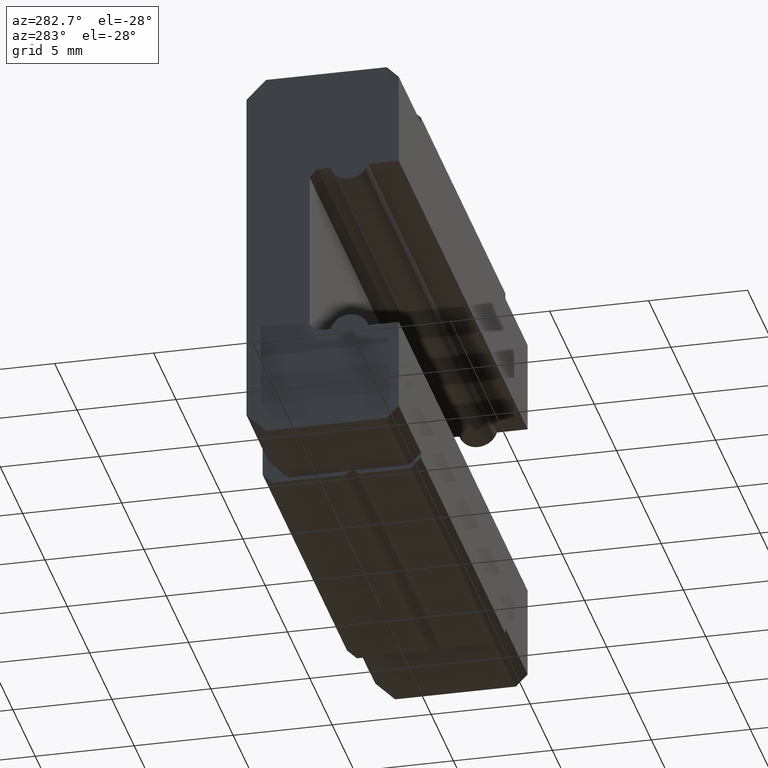
[diagram: clean part render]
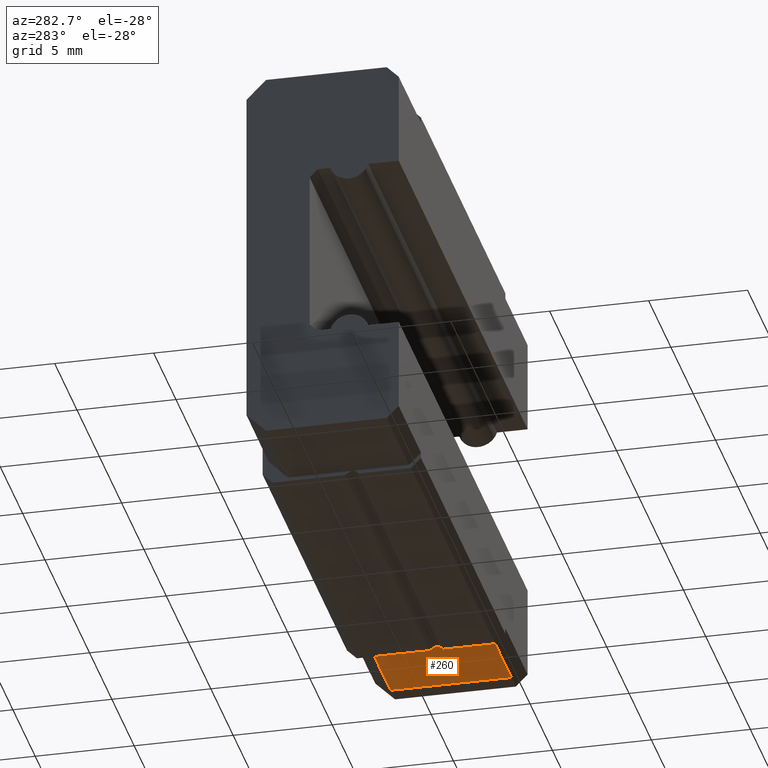
[diagram: same view with one face highlighted and labeled with its STEP entity id]
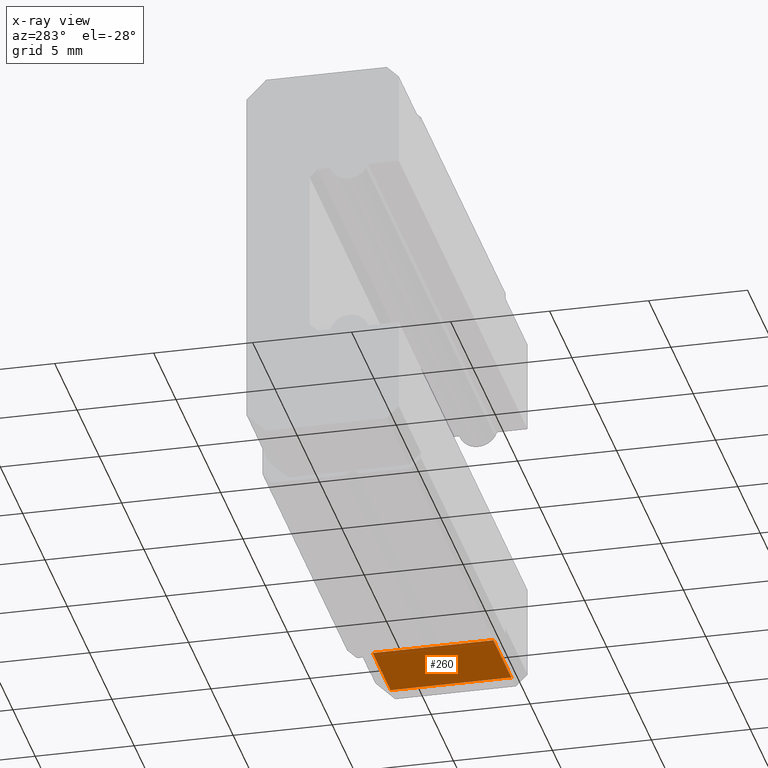
[diagram: x-ray of the same camera — body ghosted, the highlighted face saturated]
A machine part, auxiliary view. The second image highlights one B-rep face of the part: STEP entity #260.
The next image is the same camera in x-ray: the body ghosted, the highlighted face saturated — about 0% of this face is hidden behind the body in this view.
In plain terms, the highlighted planar face has unit normal (0, 0, -1).
Its self-contained STEP definition (entity closure, byte-faithful):
#243 = ORIENTED_EDGE ( 'NONE', *, *, #255, .T. ) ;
#244 = ORIENTED_EDGE ( 'NONE', *, *, #886, .T. ) ;
#255 = EDGE_CURVE ( 'NONE', #256, #880, #1364, .T. ) ;
#256 = VERTEX_POINT ( 'NONE', #1360 ) ;
#260 = ADVANCED_FACE ( 'NONE', ( #1355 ), #1354, .T. ) ;
#261 = EDGE_LOOP ( 'NONE', ( #262, #263, #320, #243, #244 ) ) ;
#262 = ORIENTED_EDGE ( 'NONE', *, *, #277, .F. ) ;
#263 = ORIENTED_EDGE ( 'NONE', *, *, #264, .F. ) ;
#264 = EDGE_CURVE ( 'NONE', #319, #278, #1412, .T. ) ;
#277 = EDGE_CURVE ( 'NONE', #278, #889, #1385, .T. ) ;
#278 = VERTEX_POINT ( 'NONE', #1448 ) ;
#319 = VERTEX_POINT ( 'NONE', #1457 ) ;
#320 = ORIENTED_EDGE ( 'NONE', *, *, #321, .T. ) ;
#321 = EDGE_CURVE ( 'NONE', #319, #256, #1456, .T. ) ;
#880 = VERTEX_POINT ( 'NONE', #1929 ) ;
#886 = EDGE_CURVE ( 'NONE', #880, #889, #1984, .T. ) ;
#889 = VERTEX_POINT ( 'NONE', #1979 ) ;
#1354 = PLANE ( 'NONE',  #1416 ) ;
#1355 = FACE_OUTER_BOUND ( 'NONE', #261, .T. ) ;
#1360 = CARTESIAN_POINT ( 'NONE',  ( 13.44999999999999900, 0.5999999999999999800, -9.800000000000000700 ) ) ;
#1361 = DIRECTION ( 'NONE',  ( -1.000000000000000000, 0.0000000000000000000, 0.0000000000000000000 ) ) ;
#1362 = VECTOR ( 'NONE', #1361, 1000.000000000000000 ) ;
#1363 = CARTESIAN_POINT ( 'NONE',  ( 13.44999999999999900, 0.5999999999999999800, -9.800000000000000700 ) ) ;
#1364 = LINE ( 'NONE', #1363, #1362 ) ;
#1385 = LINE ( 'NONE', #1451, #1450 ) ;
#1409 = DIRECTION ( 'NONE',  ( -1.000000000000000000, 0.0000000000000000000, 0.0000000000000000000 ) ) ;
#1410 = VECTOR ( 'NONE', #1409, 1000.000000000000000 ) ;
#1411 = CARTESIAN_POINT ( 'NONE',  ( 13.44999999999999900, 6.699999999999997500, -9.799999999999998900 ) ) ;
#1412 = LINE ( 'NONE', #1411, #1410 ) ;
#1413 = DIRECTION ( 'NONE',  ( 0.0000000000000000000, 1.000000000000000000, 2.843808977011160300E-016 ) ) ;
#1414 = DIRECTION ( 'NONE',  ( 0.0000000000000000000, 2.843808977011160300E-016, -1.000000000000000000 ) ) ;
#1415 = CARTESIAN_POINT ( 'NONE',  ( 13.44999999999999900, 6.699999999999997500, -9.799999999999998900 ) ) ;
#1416 = AXIS2_PLACEMENT_3D ( 'NONE', #1415, #1414, #1413 ) ;
#1448 = CARTESIAN_POINT ( 'NONE',  ( 9.449999999999999300, 6.699999999999997500, -9.799999999999998900 ) ) ;
#1449 = DIRECTION ( 'NONE',  ( 0.0000000000000000000, -1.000000000000000000, -2.843808977011160300E-016 ) ) ;
#1450 = VECTOR ( 'NONE', #1449, 1000.000000000000000 ) ;
#1451 = CARTESIAN_POINT ( 'NONE',  ( 9.449999999999999300, 6.699999999999997500, -9.799999999999998900 ) ) ;
#1453 = DIRECTION ( 'NONE',  ( 0.0000000000000000000, -1.000000000000000000, -2.843808977011160300E-016 ) ) ;
#1454 = VECTOR ( 'NONE', #1453, 1000.000000000000000 ) ;
#1455 = CARTESIAN_POINT ( 'NONE',  ( 13.44999999999999900, 6.699999999999997500, -9.799999999999998900 ) ) ;
#1456 = LINE ( 'NONE', #1455, #1454 ) ;
#1457 = CARTESIAN_POINT ( 'NONE',  ( 13.44999999999999900, 6.699999999999997500, -9.799999999999998900 ) ) ;
#1929 = CARTESIAN_POINT ( 'NONE',  ( 9.449999999999999300, 0.5999999999999999800, -9.800000000000000700 ) ) ;
#1979 = CARTESIAN_POINT ( 'NONE',  ( 9.449999999999999300, 3.499999999999999600, -9.800000000000000700 ) ) ;
#1981 = DIRECTION ( 'NONE',  ( 0.0000000000000000000, 1.000000000000000000, 2.843808977011160300E-016 ) ) ;
#1982 = VECTOR ( 'NONE', #1981, 1000.000000000000000 ) ;
#1983 = CARTESIAN_POINT ( 'NONE',  ( 9.449999999999999300, 2.500000000000001300, -9.799999999999998900 ) ) ;
#1984 = LINE ( 'NONE', #1983, #1982 ) ;